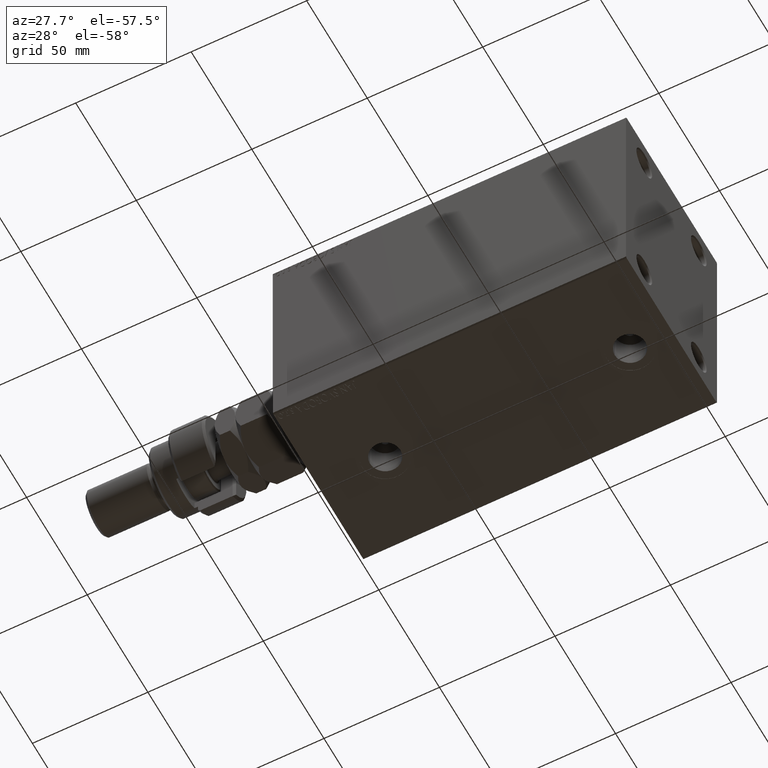
[diagram: clean part render]
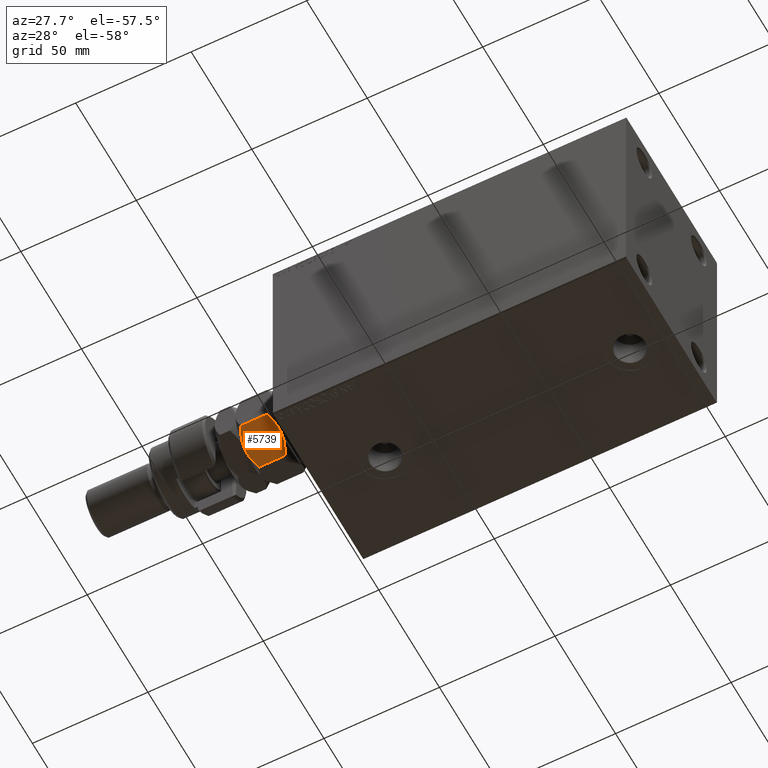
[diagram: same view with one face highlighted and labeled with its STEP entity id]
A machine part, auxiliary view. The second image highlights one B-rep face of the part: STEP entity #5739.
In plain terms, the highlighted planar face has unit normal (0, 0.5, 0.866).
Its self-contained STEP definition (entity closure, byte-faithful):
#530 = CARTESIAN_POINT ( 'NONE',  ( -4.247772349543487813, -14.86805556622358893, 0.4475714085130264031 ) ) ;
#578 = CARTESIAN_POINT ( 'NONE',  ( -2.383929548160354628, -15.94414570932928576, 14.93952096862912526 ) ) ;
#1014 = DIRECTION ( 'NONE',  ( -0.000000000000000000, -0.000000000000000000, -1.000000000000000000 ) ) ;
#1216 = CARTESIAN_POINT ( 'NONE',  ( -10.75222765045651308, -11.11270654730956409, 15.55242859148697576 ) ) ;
#1327 = DIRECTION ( 'NONE',  ( -0.8660254037844385966, 0.4999999999999999445, 0.000000000000000000 ) ) ;
#1684 = CARTESIAN_POINT ( 'NONE',  ( -10.11832554202262102, -11.47869010025374692, 15.71619733805371411 ) ) ;
#1817 = EDGE_LOOP ( 'NONE', ( #29916, #14612, #36724, #42081, #14623, #14686 ) ) ;
#3236 = VERTEX_POINT ( 'NONE', #35827 ) ;
#5137 = CARTESIAN_POINT ( 'NONE',  ( -13.82389157469335750, -9.339280553791368789, 14.35851844025821933 ) ) ;
#5719 = CARTESIAN_POINT ( 'NONE',  ( -14.99999999999999645, -8.660254037844389075, 16.00000000000000000 ) ) ;
#5739 = ADVANCED_FACE ( 'NONE', ( #12599 ), #20433, .F. ) ;
#7244 = DIRECTION ( 'NONE',  ( -0.000000000000000000, -0.000000000000000000, -1.000000000000000000 ) ) ;
#10088 = VERTEX_POINT ( 'NONE', #13842 ) ;
#10321 = CARTESIAN_POINT ( 'NONE',  ( -7.500000000000000000, -12.99038105676658006, 0.000000000000000000 ) ) ;
#10865 = CARTESIAN_POINT ( 'NONE',  ( -14.99999999999999645, -8.660254037844389075, 2.320508075688762606 ) ) ;
#11847 = CARTESIAN_POINT ( 'NONE',  ( -3.416099238086855886E-15, -17.32050807568877104, 13.67949192431124317 ) ) ;
#12043 = CARTESIAN_POINT ( 'NONE',  ( -6.176419610670697224, -13.75455055083996214, 0.05953537397470286957 ) ) ;
#12599 = FACE_OUTER_BOUND ( 'NONE', #1817, .T. ) ;
#13842 = CARTESIAN_POINT ( 'NONE',  ( -7.500000000000000000, -12.99038105676658006, 0.000000000000000000 ) ) ;
#13862 = LINE ( 'NONE', #17793, #42528 ) ;
#14025 = VERTEX_POINT ( 'NONE', #25017 ) ;
#14255 = CARTESIAN_POINT ( 'NONE',  ( -13.82525345580783060, -9.338494271363318333, 1.642267842169780279 ) ) ;
#14612 = ORIENTED_EDGE ( 'NONE', *, *, #27715, .F. ) ;
#14623 = ORIENTED_EDGE ( 'NONE', *, *, #31905, .T. ) ;
#14686 = ORIENTED_EDGE ( 'NONE', *, *, #26877, .F. ) ;
#14744 = CARTESIAN_POINT ( 'NONE',  ( -1.176108425306644722, -16.64148155974179488, 1.641481559741788665 ) ) ;
#15481 = LINE ( 'NONE', #19402, #21990 ) ;
#15832 = CARTESIAN_POINT ( 'NONE',  ( -14.99999999999999645, -8.660254037844389075, 13.67949192431124139 ) ) ;
#16642 = CARTESIAN_POINT ( 'NONE',  ( -14.99999999999999645, -8.660254037844389075, 13.67949192431124139 ) ) ;
#16886 = CARTESIAN_POINT ( 'NONE',  ( -7.500000000000001776, -12.99038105676658361, 16.00000000000000000 ) ) ;
#17793 = CARTESIAN_POINT ( 'NONE',  ( -14.99999999999999645, -8.660254037844389075, 16.00000000000000000 ) ) ;
#17944 = CARTESIAN_POINT ( 'NONE',  ( -8.804550678576912759, -12.23719837131869248, -4.878909776184767981E-16 ) ) ;
#18179 = CARTESIAN_POINT ( 'NONE',  ( -14.99999999999999645, -8.660254037844389075, 2.320508075688762606 ) ) ;
#19210 = CARTESIAN_POINT ( 'NONE',  ( -7.500000000000001776, -12.99038105676658361, 16.00000000000000000 ) ) ;
#19402 = CARTESIAN_POINT ( 'NONE',  ( -3.035766082959412415E-15, -17.32050807568877104, 16.00000000000000000 ) ) ;
#19992 = VERTEX_POINT ( 'NONE', #10865 ) ;
#20433 = PLANE ( 'NONE',  #44204 ) ;
#20956 = EDGE_CURVE ( 'NONE', #14025, #3236, #28303, .T. ) ;
#21372 = B_SPLINE_CURVE_WITH_KNOTS ( 'NONE', 3,
 ( #16642, #5137, #35531, #1216, #1684, #23758, #42686, #16886 ),
 .UNSPECIFIED., .F., .F.,
 ( 4, 2, 2, 4 ),
 ( 2.544309033641602453E-07, 0.004488823491893906108, 0.006733108022389176252, 0.008977392552884447263 ),
 .UNSPECIFIED. ) ;
#21914 = VERTEX_POINT ( 'NONE', #15832 ) ;
#21990 = VECTOR ( 'NONE', #1014, 1000.000000000000000 ) ;
#22833 = CARTESIAN_POINT ( 'NONE',  ( -4.881674457977378090, -14.50207201327941320, 0.2838026619462943323 ) ) ;
#23077 = CARTESIAN_POINT ( 'NONE',  ( -7.500000000000000000, -12.99038105676658006, 0.000000000000000000 ) ) ;
#23758 = CARTESIAN_POINT ( 'NONE',  ( -8.823580389329300999, -12.22621156269320331, 15.94046462602529957 ) ) ;
#24626 = VERTEX_POINT ( 'NONE', #38788 ) ;
#25017 = CARTESIAN_POINT ( 'NONE',  ( -7.500000000000001776, -12.99038105676658361, 16.00000000000000000 ) ) ;
#26262 = CARTESIAN_POINT ( 'NONE',  ( -2.796947266322166691E-15, -17.32050807568877104, 2.320508075688761718 ) ) ;
#26877 = EDGE_CURVE ( 'NONE', #10088, #19992, #39033, .T. ) ;
#26968 = EDGE_CURVE ( 'NONE', #24626, #10088, #46091, .T. ) ;
#26989 = CARTESIAN_POINT ( 'NONE',  ( -6.843123817691746602, -13.36962869744650284, -3.760826285809093999E-16 ) ) ;
#27715 = EDGE_CURVE ( 'NONE', #3236, #24626, #15481, .T. ) ;
#28303 = B_SPLINE_CURVE_WITH_KNOTS ( 'NONE', 3,
 ( #19210, #29759, #30490, #578, #45483, #11847 ),
 .UNSPECIFIED., .F., .F.,
 ( 4, 2, 4 ),
 ( 0.008977392552884447263, 0.01343452311421656359, 0.01789165367554867991 ),
 .UNSPECIFIED. ) ;
#28507 = EDGE_CURVE ( 'NONE', #21914, #14025, #21372, .T. ) ;
#29759 = CARTESIAN_POINT ( 'NONE',  ( -6.195449321423087241, -13.74356374221446586, 16.00000000000001066 ) ) ;
#29916 = ORIENTED_EDGE ( 'NONE', *, *, #26968, .F. ) ;
#30490 = CARTESIAN_POINT ( 'NONE',  ( -4.913081180497412603, -14.48393933357810504, 15.76967007806078946 ) ) ;
#31905 = EDGE_CURVE ( 'NONE', #21914, #19992, #13862, .T. ) ;
#32897 = CARTESIAN_POINT ( 'NONE',  ( -12.61607045183964715, -10.03661640420386902, 1.060479031370877845 ) ) ;
#35531 = CARTESIAN_POINT ( 'NONE',  ( -12.62116548881249223, -10.03367478323606221, 14.93551393225599533 ) ) ;
#35827 = CARTESIAN_POINT ( 'NONE',  ( -3.416099238086855886E-15, -17.32050807568877104, 13.67949192431124317 ) ) ;
#36724 = ORIENTED_EDGE ( 'NONE', *, *, #20956, .F. ) ;
#38292 = CARTESIAN_POINT ( 'NONE',  ( -2.378834511187505996, -15.94708733029708725, 1.064486067744005560 ) ) ;
#38788 = CARTESIAN_POINT ( 'NONE',  ( -2.796947266322166691E-15, -17.32050807568877104, 2.320508075688761718 ) ) ;
#39033 = B_SPLINE_CURVE_WITH_KNOTS ( 'NONE', 3,
 ( #10321, #17944, #47897, #32897, #14255, #18179 ),
 .UNSPECIFIED., .F., .F.,
 ( 4, 2, 4 ),
 ( 0.008977392552884445528, 0.01343452311421656012, 0.01789165367554867297 ),
 .UNSPECIFIED. ) ;
#42081 = ORIENTED_EDGE ( 'NONE', *, *, #28507, .F. ) ;
#42528 = VECTOR ( 'NONE', #7244, 1000.000000000000000 ) ;
#42686 = CARTESIAN_POINT ( 'NONE',  ( -8.156876182308250733, -12.61113341608665905, 16.00000000000000355 ) ) ;
#44204 = AXIS2_PLACEMENT_3D ( 'NONE', #5719, #46709, #1327 ) ;
#45483 = CARTESIAN_POINT ( 'NONE',  ( -1.174746544192163844, -16.64226784216984711, 14.35773215783022572 ) ) ;
#46091 = B_SPLINE_CURVE_WITH_KNOTS ( 'NONE', 3,
 ( #26262, #14744, #38292, #530, #22833, #12043, #26989, #23077 ),
 .UNSPECIFIED., .F., .F.,
 ( 4, 2, 2, 4 ),
 ( 2.544309033648719118E-07, 0.004488823491893905240, 0.006733108022389175384, 0.008977392552884445528 ),
 .UNSPECIFIED. ) ;
#46709 = DIRECTION ( 'NONE',  ( 0.5000000000000000000, 0.8660254037844387076, -0.000000000000000000 ) ) ;
#47897 = CARTESIAN_POINT ( 'NONE',  ( -10.08691881950258740, -11.49682277995505331, 0.2303299219392165864 ) ) ;